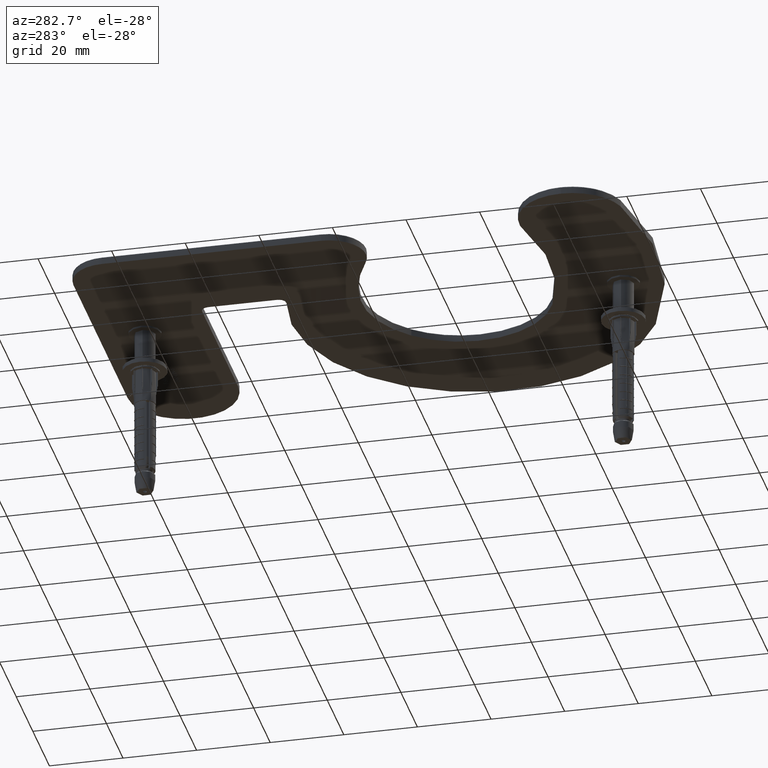
[diagram: clean part render]
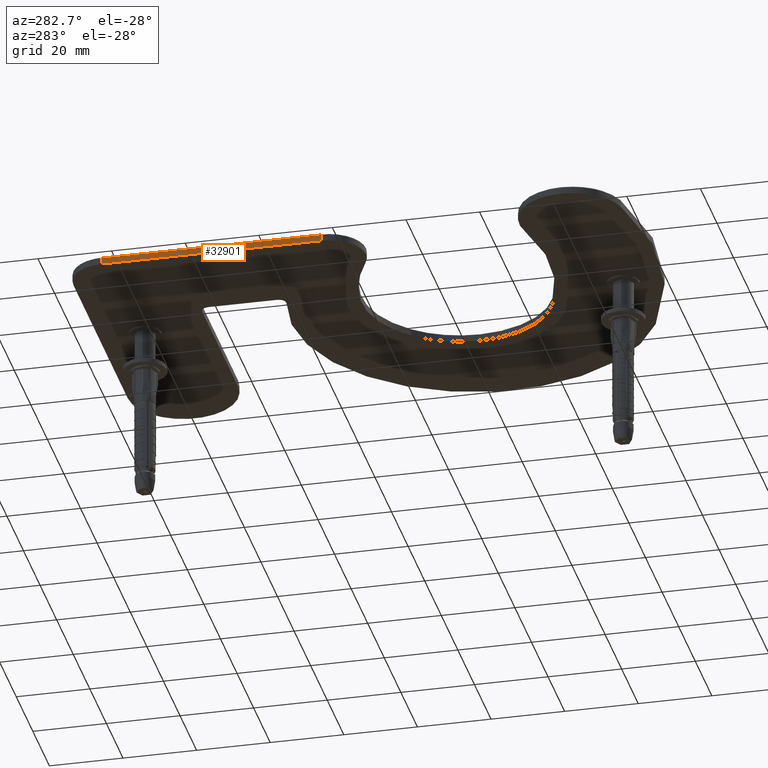
[diagram: same view with one face highlighted and labeled with its STEP entity id]
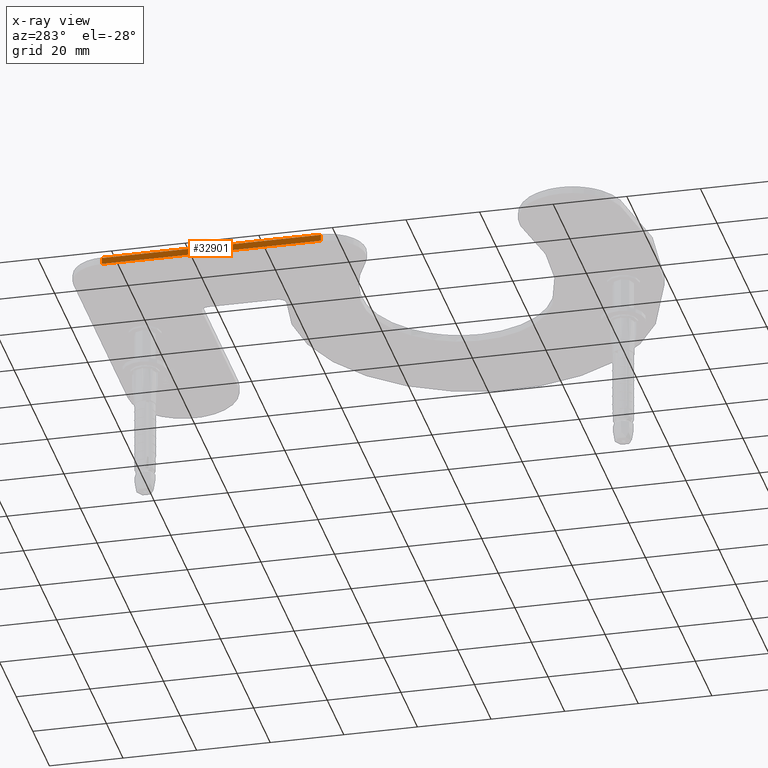
[diagram: x-ray of the same camera — body ghosted, the highlighted face saturated]
A machine part, auxiliary view. The second image highlights one B-rep face of the part: STEP entity #32901.
The next image is the same camera in x-ray: the body ghosted, the highlighted face saturated — about 0% of this face is hidden behind the body in this view.
In plain terms, the highlighted planar face has unit normal (1, -0, 0).
Its self-contained STEP definition (entity closure, byte-faithful):
#892 = EDGE_CURVE ( 'NONE', #14517, #19377, #25195, .T. ) ;
#1164 = PLANE ( 'NONE',  #32538 ) ;
#2688 = LINE ( 'NONE', #28374, #14113 ) ;
#2842 = ORIENTED_EDGE ( 'NONE', *, *, #39087, .F. ) ;
#3347 = VECTOR ( 'NONE', #18645, 1000.000000000000000 ) ;
#3819 = CARTESIAN_POINT ( 'NONE',  ( -40.74999999999999289, 85.49999999999998579, 0.000000000000000000 ) ) ;
#4554 = EDGE_LOOP ( 'NONE', ( #2842, #36425, #28054, #34423 ) ) ;
#6944 = VERTEX_POINT ( 'NONE', #3819 ) ;
#7298 = DIRECTION ( 'NONE',  ( -2.332401312237725892E-16, -1.000000000000000000, 0.000000000000000000 ) ) ;
#9014 = VERTEX_POINT ( 'NONE', #24063 ) ;
#10364 = CARTESIAN_POINT ( 'NONE',  ( -40.74999999999997868, 144.9999999999999432, 2.000000000000000000 ) ) ;
#12888 = LINE ( 'NONE', #22030, #3347 ) ;
#13654 = VECTOR ( 'NONE', #7298, 1000.000000000000000 ) ;
#14113 = VECTOR ( 'NONE', #28903, 1000.000000000000000 ) ;
#14517 = VERTEX_POINT ( 'NONE', #30345 ) ;
#14862 = CARTESIAN_POINT ( 'NONE',  ( -40.74999999999997868, 144.9999999999999432, 1.750000000000000000 ) ) ;
#18645 = DIRECTION ( 'NONE',  ( -0.000000000000000000, -0.000000000000000000, -1.000000000000000000 ) ) ;
#19315 = DIRECTION ( 'NONE',  ( 2.332401312237726385E-16, 1.000000000000000000, 0.000000000000000000 ) ) ;
#19377 = VERTEX_POINT ( 'NONE', #21115 ) ;
#20127 = EDGE_CURVE ( 'NONE', #19377, #9014, #12888, .T. ) ;
#20311 = DIRECTION ( 'NONE',  ( 2.332401312237726385E-16, 1.000000000000000000, -0.000000000000000000 ) ) ;
#21115 = CARTESIAN_POINT ( 'NONE',  ( -40.74999999999998579, 144.9999999999999432, 1.750000000000000000 ) ) ;
#22030 = CARTESIAN_POINT ( 'NONE',  ( -40.74999999999998579, 144.9999999999999432, 2.000000000000000000 ) ) ;
#22345 = DIRECTION ( 'NONE',  ( 1.000000000000000000, -2.332401312237726385E-16, 0.000000000000000000 ) ) ;
#22707 = LINE ( 'NONE', #37670, #13654 ) ;
#24063 = CARTESIAN_POINT ( 'NONE',  ( -40.74999999999998579, 144.9999999999999432, 0.000000000000000000 ) ) ;
#25195 = LINE ( 'NONE', #14862, #35700 ) ;
#28054 = ORIENTED_EDGE ( 'NONE', *, *, #20127, .T. ) ;
#28374 = CARTESIAN_POINT ( 'NONE',  ( -40.74999999999999289, 85.49999999999998579, 2.000000000000000000 ) ) ;
#28903 = DIRECTION ( 'NONE',  ( -0.000000000000000000, -0.000000000000000000, -1.000000000000000000 ) ) ;
#30345 = CARTESIAN_POINT ( 'NONE',  ( -40.74999999999999289, 85.49999999999998579, 1.750000000000000000 ) ) ;
#32538 = AXIS2_PLACEMENT_3D ( 'NONE', #10364, #22345, #19315 ) ;
#32901 = ADVANCED_FACE ( 'NONE', ( #34687 ), #1164, .F. ) ;
#33984 = EDGE_CURVE ( 'NONE', #9014, #6944, #22707, .T. ) ;
#34423 = ORIENTED_EDGE ( 'NONE', *, *, #33984, .T. ) ;
#34687 = FACE_OUTER_BOUND ( 'NONE', #4554, .T. ) ;
#35700 = VECTOR ( 'NONE', #20311, 1000.000000000000000 ) ;
#36425 = ORIENTED_EDGE ( 'NONE', *, *, #892, .T. ) ;
#37670 = CARTESIAN_POINT ( 'NONE',  ( -40.74999999999997868, 144.9999999999999432, 0.000000000000000000 ) ) ;
#39087 = EDGE_CURVE ( 'NONE', #14517, #6944, #2688, .T. ) ;